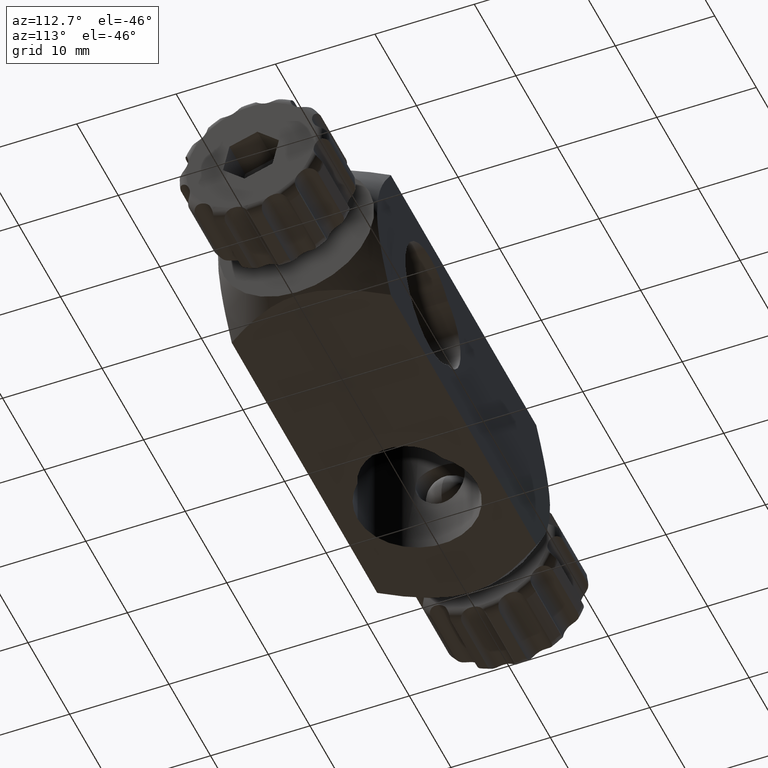
[diagram: clean part render]
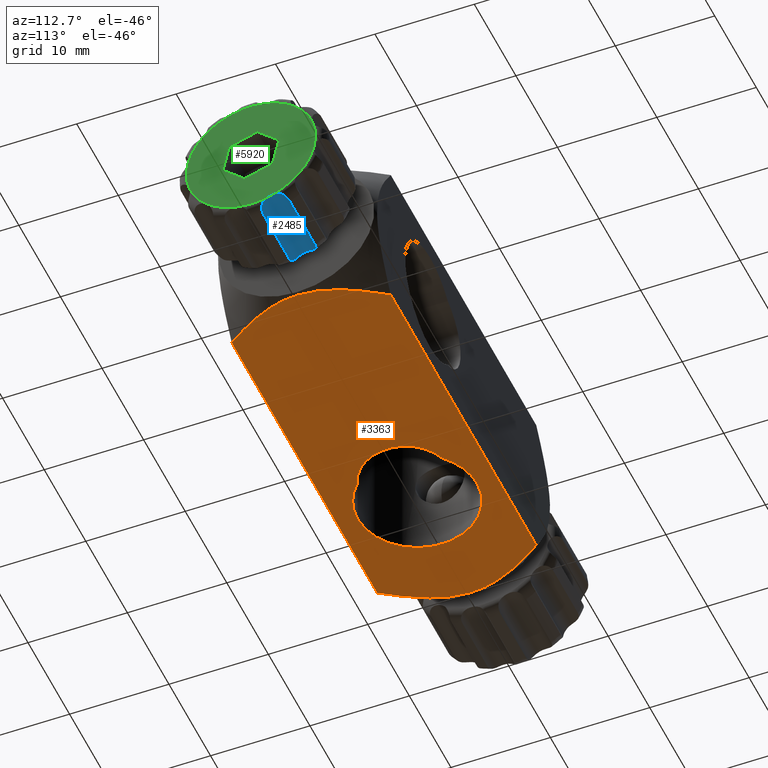
[diagram: same view with three faces highlighted in distinct colors, each labeled with its STEP entity id]
A machine part, auxiliary view with three faces highlighted in distinct colors.
Their STEP definitions:

[orange] entity #3363 — the highlighted planar face has unit normal (0, -0, 1).
#35 = ORIENTED_EDGE ( 'NONE', *, *, #175, .F. ) ;
#98 = B_SPLINE_CURVE_WITH_KNOTS ( 'NONE', 3,
 ( #4686, #1510, #5650, #1932, #1071, #5173, #3351, #3743, #5206, #2898, #2962, #2360, #5680, #5597 ),
 .UNSPECIFIED., .F., .F.,
 ( 4, 2, 2, 2, 2, 2, 4 ),
 ( 0.01783099739890334906, 0.01892789397532827420, 0.02002479055175319933, 0.02112168712817812793, 0.02221858370460305654, 0.02441237685745291028, 0.02660617001030276749 ),
 .UNSPECIFIED. ) ;
#175 = EDGE_CURVE ( 'NONE', #5871, #5452, #5161, .T. ) ;
#188 = EDGE_CURVE ( 'NONE', #5712, #3388, #4150, .T. ) ;
#266 = EDGE_LOOP ( 'NONE', ( #2147, #745, #4295, #35, #2673, #2090 ) ) ;
#320 = CARTESIAN_POINT ( 'NONE',  ( -20.69026019973990316, -1.455835578218859672, -8.000000000000003553 ) ) ;
#388 = CARTESIAN_POINT ( 'NONE',  ( -8.000000000000000000, 1.734723475976807883E-15, -8.000000000000001776 ) ) ;
#458 = DIRECTION ( 'NONE',  ( 0.000000000000000000, 1.000000000000000000, 2.891205793294679312E-16 ) ) ;
#479 = DIRECTION ( 'NONE',  ( 0.000000000000000000, -2.168404344971009115E-16, 1.000000000000000000 ) ) ;
#512 = VERTEX_POINT ( 'NONE', #2187 ) ;
#738 = VECTOR ( 'NONE', #1721, 1000.000000000000000 ) ;
#745 = ORIENTED_EDGE ( 'NONE', *, *, #4983, .T. ) ;
#788 = CARTESIAN_POINT ( 'NONE',  ( -8.000000000000000000, -5.999999999999996447, -8.000000000000003553 ) ) ;
#802 = CARTESIAN_POINT ( 'NONE',  ( -20.05440168618216745, 3.581629824737212697, -8.000000000000001776 ) ) ;
#828 = CARTESIAN_POINT ( 'NONE',  ( -8.000000000000000000, 1.734723475976807883E-15, -8.000000000000001776 ) ) ;
#1071 = CARTESIAN_POINT ( 'NONE',  ( 20.61402319011298445, 1.830865816188184336, -8.000000000000003553 ) ) ;
#1191 = DIRECTION ( 'NONE',  ( 0.000000000000000000, 2.168404344971008868E-16, -1.000000000000000000 ) ) ;
#1266 = CARTESIAN_POINT ( 'NONE',  ( -19.44030328246060435, 4.919881602706470680, -8.000000000000000000 ) ) ;
#1267 = ORIENTED_EDGE ( 'NONE', *, *, #5836, .F. ) ;
#1275 = EDGE_CURVE ( 'NONE', #5182, #5831, #1479, .T. ) ;
#1290 = CARTESIAN_POINT ( 'NONE',  ( -20.78791525579226018, 0.7382374763344536905, -8.000000000000001776 ) ) ;
#1299 = DIRECTION ( 'NONE',  ( 0.000000000000000000, 1.000000000000000000, 2.891205793294679312E-16 ) ) ;
#1300 = CIRCLE ( 'NONE', #1582, 5.999999999999998224 ) ;
#1301 = CARTESIAN_POINT ( 'NONE',  ( -3.787500000000005418, 4.272568753103925587, -8.000000000000000000 ) ) ;
#1408 = CARTESIAN_POINT ( 'NONE',  ( 19.45227572583580411, -4.896825401250167964, -8.000000000000003553 ) ) ;
#1413 = EDGE_LOOP ( 'NONE', ( #4461, #1267, #4034, #3605 ) ) ;
#1439 = CARTESIAN_POINT ( 'NONE',  ( 20.69026019973989250, -1.455835578218861448, -8.000000000000000000 ) ) ;
#1479 = CIRCLE ( 'NONE', #5633, 5.999999999999998224 ) ;
#1484 = CIRCLE ( 'NONE', #4955, 5.999999999999998224 ) ;
#1510 = CARTESIAN_POINT ( 'NONE',  ( 20.81370849898477005, 0.3668345160602040633, -8.000000000000003553 ) ) ;
#1582 = AXIS2_PLACEMENT_3D ( 'NONE', #828, #4954, #458 ) ;
#1614 = CARTESIAN_POINT ( 'NONE',  ( -8.000000000000000000, 1.734723475976807883E-15, -8.000000000000001776 ) ) ;
#1625 = CARTESIAN_POINT ( 'NONE',  ( -20.33557784473262942, -2.890462979313520808, -8.000000000000001776 ) ) ;
#1627 = AXIS2_PLACEMENT_3D ( 'NONE', #5829, #1698, #5387 ) ;
#1642 = EDGE_CURVE ( 'NONE', #2825, #5030, #1484, .T. ) ;
#1681 = CARTESIAN_POINT ( 'NONE',  ( -20.07182435414851440, -3.572536052425639763, -8.000000000000003553 ) ) ;
#1698 = DIRECTION ( 'NONE',  ( 0.000000000000000000, 2.168404344971008868E-16, -1.000000000000000000 ) ) ;
#1711 = CARTESIAN_POINT ( 'NONE',  ( -18.32578179175527922, 6.799884536331319396, -8.000000000000000000 ) ) ;
#1712 = CARTESIAN_POINT ( 'NONE',  ( -20.81370849898476649, -7.838516384728583804E-24, -8.000000000000001776 ) ) ;
#1721 = DIRECTION ( 'NONE',  ( -1.000000000000000000, -0.000000000000000000, -0.000000000000000000 ) ) ;
#1745 = EDGE_CURVE ( 'NONE', #5831, #2825, #1300, .T. ) ;
#1811 = PLANE ( 'NONE',  #5644 ) ;
#1867 = FACE_OUTER_BOUND ( 'NONE', #266, .T. ) ;
#1914 = CARTESIAN_POINT ( 'NONE',  ( 18.32920172496105238, -6.794962145850091062, -8.000000000000003553 ) ) ;
#1932 = CARTESIAN_POINT ( 'NONE',  ( 20.68773215841724422, 1.470757925850914916, -8.000000000000000000 ) ) ;
#1941 = CARTESIAN_POINT ( 'NONE',  ( 17.92199593094689547, -7.403207631188642779, -8.000000000000005329 ) ) ;
#2090 = ORIENTED_EDGE ( 'NONE', *, *, #4846, .F. ) ;
#2147 = ORIENTED_EDGE ( 'NONE', *, *, #188, .F. ) ;
#2187 = CARTESIAN_POINT ( 'NONE',  ( -17.50000000000000000, -8.000000000000001776, -8.000000000000003553 ) ) ;
#2227 = DIRECTION ( 'NONE',  ( 0.000000000000000000, 2.168404344971008868E-16, -1.000000000000000000 ) ) ;
#2344 = CARTESIAN_POINT ( 'NONE',  ( 17.50000000000000355, 8.000000000000000000, -8.000000000000000000 ) ) ;
#2360 = CARTESIAN_POINT ( 'NONE',  ( 18.32578179175528277, 6.799884536331306073, -8.000000000000001776 ) ) ;
#2373 = CARTESIAN_POINT ( 'NONE',  ( 20.81370849898476649, -7.838516384728583804E-24, -8.000000000000001776 ) ) ;
#2374 = VECTOR ( 'NONE', #5884, 1000.000000000000000 ) ;
#2563 = CARTESIAN_POINT ( 'NONE',  ( -17.50000000000000000, -8.000000000000001776, -8.000000000000003553 ) ) ;
#2575 = LINE ( 'NONE', #5856, #738 ) ;
#2617 = CARTESIAN_POINT ( 'NONE',  ( -19.45227572583581122, -4.896825401250164411, -8.000000000000005329 ) ) ;
#2645 = CARTESIAN_POINT ( 'NONE',  ( -20.31356114242296229, 2.890522693891473871, -8.000000000000001776 ) ) ;
#2673 = ORIENTED_EDGE ( 'NONE', *, *, #5060, .F. ) ;
#2734 = CARTESIAN_POINT ( 'NONE',  ( 19.09497030133767836, -5.540803229080685455, -8.000000000000001776 ) ) ;
#2796 = CARTESIAN_POINT ( 'NONE',  ( 20.61701652224494197, -1.817904995483557551, -8.000000000000001776 ) ) ;
#2805 = CARTESIAN_POINT ( 'NONE',  ( 20.81370849898476649, -7.838516384728583804E-24, -8.000000000000001776 ) ) ;
#2825 = VERTEX_POINT ( 'NONE', #5449 ) ;
#2898 = CARTESIAN_POINT ( 'NONE',  ( 19.44030328246060435, 4.919881602706468016, -8.000000000000001776 ) ) ;
#2903 = CARTESIAN_POINT ( 'NONE',  ( 17.50000000000000000, -8.000000000000001776, -8.000000000000003553 ) ) ;
#2962 = CARTESIAN_POINT ( 'NONE',  ( 19.08536439680540298, 5.557202719141017155, -8.000000000000000000 ) ) ;
#3025 = DIRECTION ( 'NONE',  ( 0.000000000000000000, 1.000000000000000000, 2.891205793294679312E-16 ) ) ;
#3351 = CARTESIAN_POINT ( 'NONE',  ( 20.31356114242296229, 2.890522693891475203, -8.000000000000003553 ) ) ;
#3363 = ADVANCED_FACE ( 'NONE', ( #5468, #1867 ), #1811, .F. ) ;
#3388 = VERTEX_POINT ( 'NONE', #2805 ) ;
#3550 = CARTESIAN_POINT ( 'NONE',  ( -20.81370849898476649, -0.3663150559983832100, -8.000000000000001776 ) ) ;
#3579 = CARTESIAN_POINT ( 'NONE',  ( -20.61402319011298445, 1.830865816188185002, -8.000000000000000000 ) ) ;
#3605 = ORIENTED_EDGE ( 'NONE', *, *, #1745, .F. ) ;
#3743 = CARTESIAN_POINT ( 'NONE',  ( 20.05440168618216390, 3.581629824737211809, -8.000000000000003553 ) ) ;
#3778 = CARTESIAN_POINT ( 'NONE',  ( 20.78844343409581796, -0.7307012536122527990, -8.000000000000001776 ) ) ;
#4031 = CARTESIAN_POINT ( 'NONE',  ( -17.50000000000000000, 8.000000000000000000, -8.000000000000005329 ) ) ;
#4034 = ORIENTED_EDGE ( 'NONE', *, *, #1642, .F. ) ;
#4066 = CARTESIAN_POINT ( 'NONE',  ( 21.00000000000000000, 8.000000000000000000, -8.000000000000000000 ) ) ;
#4104 = CARTESIAN_POINT ( 'NONE',  ( 21.00000000000000000, 8.000000000000000000, -8.000000000000000000 ) ) ;
#4150 = B_SPLINE_CURVE_WITH_KNOTS ( 'NONE', 3,
 ( #4154, #1941, #1914, #2734, #1408, #5971, #4574, #2796, #1439, #3778, #5029, #2373 ),
 .UNSPECIFIED., .F., .F.,
 ( 4, 2, 2, 2, 2, 4 ),
 ( 0.009068250967450548414, 0.01125893757531374814, 0.01344962418317694614, 0.01564031079104014760, 0.01673565409497174833, 0.01783099739890334906 ),
 .UNSPECIFIED. ) ;
#4154 = CARTESIAN_POINT ( 'NONE',  ( 17.50000000000000000, -8.000000000000001776, -8.000000000000003553 ) ) ;
#4295 = ORIENTED_EDGE ( 'NONE', *, *, #5116, .F. ) ;
#4365 = CARTESIAN_POINT ( 'NONE',  ( -18.32920172496105593, -6.794962145850087509, -8.000000000000003553 ) ) ;
#4461 = ORIENTED_EDGE ( 'NONE', *, *, #1275, .F. ) ;
#4492 = LINE ( 'NONE', #4066, #2374 ) ;
#4511 = VERTEX_POINT ( 'NONE', #2344 ) ;
#4574 = CARTESIAN_POINT ( 'NONE',  ( 20.33557784473263652, -2.890462979313523029, -8.000000000000005329 ) ) ;
#4603 = CARTESIAN_POINT ( 'NONE',  ( -20.81370849898476649, -7.838516384728583804E-24, -8.000000000000001776 ) ) ;
#4615 = DIRECTION ( 'NONE',  ( 0.000000000000000000, -1.000000000000000000, -2.168404344971009115E-16 ) ) ;
#4686 = CARTESIAN_POINT ( 'NONE',  ( 20.81370849898476649, -7.838516384728583804E-24, -8.000000000000001776 ) ) ;
#4846 = EDGE_CURVE ( 'NONE', #3388, #4511, #98, .T. ) ;
#4932 = CARTESIAN_POINT ( 'NONE',  ( -19.90858681300131394, 3.922667415171030569, -8.000000000000003553 ) ) ;
#4954 = DIRECTION ( 'NONE',  ( 0.000000000000000000, 2.168404344971008868E-16, -1.000000000000000000 ) ) ;
#4955 = AXIS2_PLACEMENT_3D ( 'NONE', #1614, #1191, #3025 ) ;
#4966 = CARTESIAN_POINT ( 'NONE',  ( -19.09497030133769613, -5.540803229080683678, -8.000000000000003553 ) ) ;
#4983 = EDGE_CURVE ( 'NONE', #5712, #512, #2575, .T. ) ;
#5029 = CARTESIAN_POINT ( 'NONE',  ( 20.81370849898477005, -0.3663150559983831545, -8.000000000000001776 ) ) ;
#5030 = VERTEX_POINT ( 'NONE', #1301 ) ;
#5060 = EDGE_CURVE ( 'NONE', #4511, #5871, #4492, .T. ) ;
#5116 = EDGE_CURVE ( 'NONE', #5452, #512, #5857, .T. ) ;
#5161 = B_SPLINE_CURVE_WITH_KNOTS ( 'NONE', 3,
 ( #4031, #5814, #1711, #5399, #1266, #4932, #802, #2645, #5873, #3579, #5424, #1290, #5635, #4603 ),
 .UNSPECIFIED., .F., .F.,
 ( 4, 2, 2, 2, 2, 2, 4 ),
 ( 0.03399603221308254014, 0.03618591376051046721, 0.03837579530793839427, 0.03947073608165235781, 0.04056567685536632134, 0.04166061762908029181, 0.04275555840279425535 ),
 .UNSPECIFIED. ) ;
#5173 = CARTESIAN_POINT ( 'NONE',  ( 20.42692407732145199, 2.540744656161479931, -8.000000000000001776 ) ) ;
#5182 = VERTEX_POINT ( 'NONE', #5342 ) ;
#5206 = CARTESIAN_POINT ( 'NONE',  ( 19.90858681300131749, 3.922667415171029681, -8.000000000000001776 ) ) ;
#5318 = CARTESIAN_POINT ( 'NONE',  ( -20.61701652224494197, -1.817904995483557773, -8.000000000000001776 ) ) ;
#5342 = CARTESIAN_POINT ( 'NONE',  ( -3.787500000000004530, -4.272568753103921146, -8.000000000000003553 ) ) ;
#5387 = DIRECTION ( 'NONE',  ( 0.000000000000000000, 1.000000000000000000, 3.854941057726237111E-16 ) ) ;
#5399 = CARTESIAN_POINT ( 'NONE',  ( -19.08536439680539232, 5.557202719141026925, -8.000000000000001776 ) ) ;
#5400 = CARTESIAN_POINT ( 'NONE',  ( -17.92199593094690258, -7.403207631188638338, -8.000000000000003553 ) ) ;
#5424 = CARTESIAN_POINT ( 'NONE',  ( -20.68773215841725133, 1.470757925850920911, -8.000000000000001776 ) ) ;
#5449 = CARTESIAN_POINT ( 'NONE',  ( -8.000000000000000000, 6.000000000000000000, -8.000000000000000000 ) ) ;
#5452 = VERTEX_POINT ( 'NONE', #5958 ) ;
#5468 = FACE_BOUND ( 'NONE', #1413, .T. ) ;
#5586 = CIRCLE ( 'NONE', #1627, 4.500000000000000888 ) ;
#5597 = CARTESIAN_POINT ( 'NONE',  ( 17.50000000000000355, 8.000000000000000000, -8.000000000000000000 ) ) ;
#5633 = AXIS2_PLACEMENT_3D ( 'NONE', #388, #2227, #1299 ) ;
#5635 = CARTESIAN_POINT ( 'NONE',  ( -20.81370849898476294, 0.3668345160602036747, -8.000000000000000000 ) ) ;
#5644 = AXIS2_PLACEMENT_3D ( 'NONE', #4104, #479, #4615 ) ;
#5650 = CARTESIAN_POINT ( 'NONE',  ( 20.78791525579226729, 0.7382374763344489166, -8.000000000000001776 ) ) ;
#5680 = CARTESIAN_POINT ( 'NONE',  ( 17.92073733177019079, 7.404987559213930481, -7.999999999999998224 ) ) ;
#5712 = VERTEX_POINT ( 'NONE', #2903 ) ;
#5760 = CARTESIAN_POINT ( 'NONE',  ( -20.78844343409582152, -0.7307012536122524660, -8.000000000000000000 ) ) ;
#5814 = CARTESIAN_POINT ( 'NONE',  ( -17.92073733177018724, 7.404987559213939363, -8.000000000000000000 ) ) ;
#5829 = CARTESIAN_POINT ( 'NONE',  ( -5.200000000000000178, 1.734723475976807883E-15, -8.000000000000001776 ) ) ;
#5831 = VERTEX_POINT ( 'NONE', #788 ) ;
#5836 = EDGE_CURVE ( 'NONE', #5030, #5182, #5586, .T. ) ;
#5856 = CARTESIAN_POINT ( 'NONE',  ( 21.00000000000000000, -7.999999999999998224, -8.000000000000003553 ) ) ;
#5857 = B_SPLINE_CURVE_WITH_KNOTS ( 'NONE', 3,
 ( #1712, #3550, #5760, #320, #5318, #1625, #1681, #2617, #4966, #4365, #5400, #2563 ),
 .UNSPECIFIED., .F., .F.,
 ( 4, 2, 2, 2, 2, 4 ),
 ( 0.04275555840279425535, 0.04384894867355088738, 0.04494233894430751941, 0.04712911948582078348, 0.04931590002733404754, 0.05150268056884731160 ),
 .UNSPECIFIED. ) ;
#5871 = VERTEX_POINT ( 'NONE', #5925 ) ;
#5873 = CARTESIAN_POINT ( 'NONE',  ( -20.42692407732145199, 2.540744656161480375, -8.000000000000001776 ) ) ;
#5884 = DIRECTION ( 'NONE',  ( -1.000000000000000000, -0.000000000000000000, -0.000000000000000000 ) ) ;
#5925 = CARTESIAN_POINT ( 'NONE',  ( -17.50000000000000000, 8.000000000000000000, -8.000000000000005329 ) ) ;
#5958 = CARTESIAN_POINT ( 'NONE',  ( -20.81370849898476649, -7.838516384728583804E-24, -8.000000000000001776 ) ) ;
#5971 = CARTESIAN_POINT ( 'NONE',  ( 20.07182435414850730, -3.572536052425642872, -8.000000000000003553 ) ) ;

[blue] entity #2485 — the highlighted cylindrical surface (edge-blend (fillet) strip) has radius 1.5 mm, axis along (-1, 0, -0).
#166 = CARTESIAN_POINT ( 'NONE',  ( 23.99751958455902923, 2.308259842281032537, -6.126509887344766980 ) ) ;
#192 = B_SPLINE_CURVE_WITH_KNOTS ( 'NONE', 3,
 ( #225, #3453, #4469, #2998, #2583, #4810, #1164, #2060, #310, #5274, #1138, #1666, #3895, #5359, #1644, #5748 ),
 .UNSPECIFIED., .F., .F.,
 ( 4, 2, 2, 2, 2, 2, 2, 4 ),
 ( 0.002339469482553254570, 0.002620738270428607519, 0.002902007058303960902, 0.003183275846179314285, 0.003464544634054667234, 0.003745813421930020183, 0.004027082209805374000, 0.004589619785556071224 ),
 .UNSPECIFIED. ) ;
#225 = CARTESIAN_POINT ( 'NONE',  ( 24.00000000000000000, 1.937972247087622168, -6.204374551033994045 ) ) ;
#310 = CARTESIAN_POINT ( 'NONE',  ( 24.08146786490933877, 1.130399114861763588, -6.809699942589079846 ) ) ;
#324 = CARTESIAN_POINT ( 'NONE',  ( 30.99999999999999645, 3.500424969360996563, -6.633025330411022047 ) ) ;
#368 = CARTESIAN_POINT ( 'NONE',  ( 32.00000000000000000, 1.937972247087621946, -6.204374551033994045 ) ) ;
#473 = VERTEX_POINT ( 'NONE', #5869 ) ;
#514 = CARTESIAN_POINT ( 'NONE',  ( 32.00000000000000711, 1.758765637494212886, -6.260350771204127085 ) ) ;
#519 = CARTESIAN_POINT ( 'NONE',  ( 24.15402759177798941, 3.104861993822077171, -6.317177671124177607 ) ) ;
#555 = CARTESIAN_POINT ( 'NONE',  ( 24.81187099171115662, 3.500424969361002780, -6.633025330411004283 ) ) ;
#580 = CARTESIAN_POINT ( 'NONE',  ( 31.37549100700444527, 0.9016239258571655535, -7.390650786856983068 ) ) ;
#614 = CARTESIAN_POINT ( 'NONE',  ( 24.38812726182523249, 3.346728716509064228, -6.483644588841966261 ) ) ;
#652 = CARTESIAN_POINT ( 'NONE',  ( 32.00016914116274336, 2.120939116082320997, -6.156648079884501357 ) ) ;
#709 = CARTESIAN_POINT ( 'NONE',  ( 31.97727455232851668, 2.681303708081810733, -6.162780706387041008 ) ) ;
#789 = ORIENTED_EDGE ( 'NONE', *, *, #2438, .F. ) ;
#807 = LINE ( 'NONE', #4970, #1987 ) ;
#885 = ORIENTED_EDGE ( 'NONE', *, *, #1634, .F. ) ;
#978 = CARTESIAN_POINT ( 'NONE',  ( 31.95464743911768224, 1.173778482601083306, -6.734507984640838885 ) ) ;
#1138 = CARTESIAN_POINT ( 'NONE',  ( 24.20096478923031924, 1.008634325871471171, -7.035741060663617041 ) ) ;
#1164 = CARTESIAN_POINT ( 'NONE',  ( 24.02272735563643380, 1.303109009612055447, -6.593275966250208064 ) ) ;
#1171 = CARTESIAN_POINT ( 'NONE',  ( 31.99876990541140032, 2.306986903674574041, -6.135269906054463540 ) ) ;
#1257 = B_SPLINE_CURVE_WITH_KNOTS ( 'NONE', 3,
 ( #368, #4752, #652, #1171, #3900, #2979, #709, #4816, #3396, #5247, #2556, #5668, #3865, #4841, #1585, #2101 ),
 .UNSPECIFIED., .F., .F.,
 ( 4, 2, 2, 2, 2, 2, 2, 4 ),
 ( 0.002345318102255090562, 0.002626582659963838488, 0.002907847217672585981, 0.003189111775381333475, 0.003470376333090081401, 0.003751640890798829328, 0.004032905448507576388, 0.004595434563925072241 ),
 .UNSPECIFIED. ) ;
#1268 = CARTESIAN_POINT ( 'NONE',  ( 25.00000000000001421, 0.8972812836455283936, -7.446132304627655074 ) ) ;
#1440 = VERTEX_POINT ( 'NONE', #4694 ) ;
#1572 = CARTESIAN_POINT ( 'NONE',  ( 24.00000000000000000, 1.937972247087622168, -6.204374551033994045 ) ) ;
#1585 = CARTESIAN_POINT ( 'NONE',  ( 31.19023267080075712, 3.500424969361004113, -6.633025330411006948 ) ) ;
#1634 = EDGE_CURVE ( 'NONE', #3603, #2359, #192, .T. ) ;
#1644 = CARTESIAN_POINT ( 'NONE',  ( 24.80970709074878044, 0.8972812836455444918, -7.446132304627661291 ) ) ;
#1666 = CARTESIAN_POINT ( 'NONE',  ( 24.31828685240397547, 0.9564609577220056780, -7.173408215548046307 ) ) ;
#1759 = CARTESIAN_POINT ( 'NONE',  ( 28.00000000000000711, 3.500424969360997451, -6.633025330411018494 ) ) ;
#1858 = CARTESIAN_POINT ( 'NONE',  ( 32.00000000000000000, 2.385196611800162625, -7.636153293580284718 ) ) ;
#1892 = EDGE_CURVE ( 'NONE', #1440, #473, #5616, .T. ) ;
#1957 = CARTESIAN_POINT ( 'NONE',  ( 32.00248026754062636, 1.589167718307775035, -6.351131901351920739 ) ) ;
#1987 = VECTOR ( 'NONE', #3641, 1000.000000000000000 ) ;
#1996 = CARTESIAN_POINT ( 'NONE',  ( 24.00000000000001066, 2.117109261410809573, -6.148420069348699890 ) ) ;
#2025 = CARTESIAN_POINT ( 'NONE',  ( 25.00000000000000711, 3.500424969360983685, -6.633025330411014941 ) ) ;
#2060 = CARTESIAN_POINT ( 'NONE',  ( 24.05639239723286593, 1.183494900500337677, -6.733701247359876518 ) ) ;
#2101 = CARTESIAN_POINT ( 'NONE',  ( 30.99999999999999645, 3.500424969360996563, -6.633025330411022047 ) ) ;
#2330 = CARTESIAN_POINT ( 'NONE',  ( 31.18804614191824598, 0.8972812836455457131, -7.446132304627646192 ) ) ;
#2359 = VERTEX_POINT ( 'NONE', #1268 ) ;
#2419 = CARTESIAN_POINT ( 'NONE',  ( 31.80972844213310324, 0.9990401763261096413, -7.036930060320279345 ) ) ;
#2438 = EDGE_CURVE ( 'NONE', #2359, #1440, #807, .T. ) ;
#2452 = CARTESIAN_POINT ( 'NONE',  ( 24.31939133577748535, 3.297512678772928307, -6.443193427419529939 ) ) ;
#2485 = ADVANCED_FACE ( 'NONE', ( #2859 ), #4703, .F. ) ;
#2556 = CARTESIAN_POINT ( 'NONE',  ( 31.79900949073919492, 3.175305950506225994, -6.358992791759682461 ) ) ;
#2583 = CARTESIAN_POINT ( 'NONE',  ( 24.00280470108762287, 1.517289405004783376, -6.409146827607827390 ) ) ;
#2766 = VECTOR ( 'NONE', #4993, 1000.000000000000000 ) ;
#2859 = FACE_OUTER_BOUND ( 'NONE', #5303, .T. ) ;
#2979 = CARTESIAN_POINT ( 'NONE',  ( 31.98652902969436340, 2.587710146350430396, -6.146922376911984287 ) ) ;
#2998 = CARTESIAN_POINT ( 'NONE',  ( 24.00123062124038853, 1.595181819288254310, -6.357618221935366520 ) ) ;
#3276 = DIRECTION ( 'NONE',  ( -1.000000000000000000, 2.081668171172181147E-17, -2.978764910297605146E-31 ) ) ;
#3292 = ORIENTED_EDGE ( 'NONE', *, *, #5729, .F. ) ;
#3320 = CARTESIAN_POINT ( 'NONE',  ( 31.00000000000000000, 0.8972812836455450469, -7.446132304627644416 ) ) ;
#3352 = CARTESIAN_POINT ( 'NONE',  ( 32.00000000000000000, 1.937972247087621946, -6.204374551033994045 ) ) ;
#3396 = CARTESIAN_POINT ( 'NONE',  ( 31.91852380937766753, 2.946522460128031984, -6.242435454414397178 ) ) ;
#3453 = CARTESIAN_POINT ( 'NONE',  ( 24.00000000000001066, 1.848442258598245180, -6.232339760346756741 ) ) ;
#3581 = VERTEX_POINT ( 'NONE', #324 ) ;
#3603 = VERTEX_POINT ( 'NONE', #5763 ) ;
#3641 = DIRECTION ( 'NONE',  ( 1.000000000000000000, -2.081668171172181147E-17, 2.978764910297605146E-31 ) ) ;
#3816 = AXIS2_PLACEMENT_3D ( 'NONE', #1858, #3276, #4248 ) ;
#3865 = CARTESIAN_POINT ( 'NONE',  ( 31.61189655131731158, 3.346644665022306508, -6.483587503793007301 ) ) ;
#3895 = CARTESIAN_POINT ( 'NONE',  ( 24.38806982832167947, 0.9386688704565895325, -7.235714534035927237 ) ) ;
#3900 = CARTESIAN_POINT ( 'NONE',  ( 31.99719847196087841, 2.400370750845048917, -6.133292621281955626 ) ) ;
#4248 = DIRECTION ( 'NONE',  ( 0.000000000000000000, 0.9757126306666046300, -0.2190544734938189297 ) ) ;
#4294 = CARTESIAN_POINT ( 'NONE',  ( 24.04540171856379160, 2.868158732186969040, -6.205346734632690264 ) ) ;
#4469 = CARTESIAN_POINT ( 'NONE',  ( 23.99983055740414883, 1.760391532044969454, -6.269261229763313459 ) ) ;
#4618 = B_SPLINE_CURVE_WITH_KNOTS ( 'NONE', 3,
 ( #5715, #555, #5147, #614, #2452, #4655, #519, #4294, #4775, #166, #1996, #1572 ),
 .UNSPECIFIED., .F., .F.,
 ( 4, 2, 2, 2, 2, 4 ),
 ( 8.835109272916360308E-05, 0.0006511306901851865447, 0.0009325204889131986051, 0.001213910287641210449, 0.001776689885097232401, 0.002339469482553254570 ),
 .UNSPECIFIED. ) ;
#4621 = EDGE_CURVE ( 'NONE', #473, #3581, #1257, .T. ) ;
#4651 = CARTESIAN_POINT ( 'NONE',  ( 31.98116923037343895, 1.298136799415323894, -6.585799571229058458 ) ) ;
#4655 = CARTESIAN_POINT ( 'NONE',  ( 24.20119712419117874, 3.175687806366719101, -6.359204774790399917 ) ) ;
#4694 = CARTESIAN_POINT ( 'NONE',  ( 31.00000000000000000, 0.8972812836455450469, -7.446132304627644416 ) ) ;
#4703 = CYLINDRICAL_SURFACE ( 'NONE', #3816, 1.500000000000001554 ) ;
#4752 = CARTESIAN_POINT ( 'NONE',  ( 32.00000000000000711, 2.027536017286060588, -6.176398789809157464 ) ) ;
#4775 = CARTESIAN_POINT ( 'NONE',  ( 24.01882705403933116, 2.681120640336846606, -6.153799945073582300 ) ) ;
#4810 = CARTESIAN_POINT ( 'NONE',  ( 24.01346524178738662, 1.371117475214700177, -6.526896203502576377 ) ) ;
#4816 = CARTESIAN_POINT ( 'NONE',  ( 31.94361272516191974, 2.859574490352930098, -6.210154758693016142 ) ) ;
#4841 = CARTESIAN_POINT ( 'NONE',  ( 31.37692889517565575, 3.464685099129603874, -6.589317279177127951 ) ) ;
#4970 = CARTESIAN_POINT ( 'NONE',  ( 28.00000000000000711, 0.8972812836455438257, -7.446132304627651521 ) ) ;
#4993 = DIRECTION ( 'NONE',  ( -1.000000000000000000, 2.081668171172181147E-17, -2.978764910297605146E-31 ) ) ;
#5064 = ORIENTED_EDGE ( 'NONE', *, *, #1892, .F. ) ;
#5147 = CARTESIAN_POINT ( 'NONE',  ( 24.62473436945946048, 3.465375709489555422, -6.589972463872041608 ) ) ;
#5207 = CARTESIAN_POINT ( 'NONE',  ( 31.69061737153210956, 0.9509589535330251753, -7.184244303968499779 ) ) ;
#5247 = CARTESIAN_POINT ( 'NONE',  ( 31.84668284873060884, 3.103556066112693301, -6.316495831353800661 ) ) ;
#5265 = EDGE_CURVE ( 'NONE', #3581, #5938, #5965, .T. ) ;
#5274 = CARTESIAN_POINT ( 'NONE',  ( 24.15333974141501372, 1.043405953403458541, -6.960032203296301567 ) ) ;
#5303 = EDGE_LOOP ( 'NONE', ( #789, #885, #3292, #5341, #5899, #5064 ) ) ;
#5341 = ORIENTED_EDGE ( 'NONE', *, *, #5265, .F. ) ;
#5359 = CARTESIAN_POINT ( 'NONE',  ( 24.62319506584616491, 0.9017721129131979207, -7.389928634806133267 ) ) ;
#5616 = B_SPLINE_CURVE_WITH_KNOTS ( 'NONE', 3,
 ( #3320, #2330, #580, #5207, #2419, #978, #4651, #1957, #514, #3352 ),
 .UNSPECIFIED., .F., .F.,
 ( 4, 2, 2, 2, 4 ),
 ( 9.420841028499990673E-05, 0.0006569858332775226246, 0.001219763256270045343, 0.001782540679262568060, 0.002345318102255090562 ),
 .UNSPECIFIED. ) ;
#5668 = CARTESIAN_POINT ( 'NONE',  ( 31.68176762438583438, 3.296485057765928595, -6.442434280256592594 ) ) ;
#5715 = CARTESIAN_POINT ( 'NONE',  ( 25.00000000000000711, 3.500424969360983685, -6.633025330411014941 ) ) ;
#5729 = EDGE_CURVE ( 'NONE', #5938, #3603, #4618, .T. ) ;
#5748 = CARTESIAN_POINT ( 'NONE',  ( 25.00000000000001421, 0.8972812836455283936, -7.446132304627655074 ) ) ;
#5763 = CARTESIAN_POINT ( 'NONE',  ( 24.00000000000000000, 1.937972247087622168, -6.204374551033994045 ) ) ;
#5869 = CARTESIAN_POINT ( 'NONE',  ( 32.00000000000000000, 1.937972247087621946, -6.204374551033994045 ) ) ;
#5899 = ORIENTED_EDGE ( 'NONE', *, *, #4621, .F. ) ;
#5938 = VERTEX_POINT ( 'NONE', #2025 ) ;
#5965 = LINE ( 'NONE', #1759, #2766 ) ;

[green] entity #5920 — the highlighted planar face has unit normal (-1, 0, -0).
#8 = DIRECTION ( 'NONE',  ( 1.000000000000000000, -2.081668171172181147E-17, 2.978764910297605146E-31 ) ) ;
#33 = DIRECTION ( 'NONE',  ( 1.000000000000000000, -2.081668171172181147E-17, 2.978764910297605146E-31 ) ) ;
#51 = CIRCLE ( 'NONE', #2069, 6.499999999999999112 ) ;
#72 = CARTESIAN_POINT ( 'NONE',  ( 32.00000000000000711, 1.944086263274379672E-15, -2.123597736885457156E-29 ) ) ;
#86 = ORIENTED_EDGE ( 'NONE', *, *, #5072, .T. ) ;
#124 = DIRECTION ( 'NONE',  ( 4.559987252249932285E-18, 0.2190544734938190130, 0.9757126306666045190 ) ) ;
#154 = CARTESIAN_POINT ( 'NONE',  ( 32.00000000000000000, -0.6450029121181185543, -2.872972544832126385 ) ) ;
#156 = EDGE_CURVE ( 'NONE', #4479, #3130, #4843, .T. ) ;
#177 = VERTEX_POINT ( 'NONE', #1022 ) ;
#258 = AXIS2_PLACEMENT_3D ( 'NONE', #360, #5526, #2231 ) ;
#280 = VERTEX_POINT ( 'NONE', #1493 ) ;
#298 = DIRECTION ( 'NONE',  ( 1.000000000000000000, -2.081668171172181147E-17, 2.978764910297605146E-31 ) ) ;
#328 = AXIS2_PLACEMENT_3D ( 'NONE', #72, #3744, #1539 ) ;
#359 = CARTESIAN_POINT ( 'NONE',  ( 32.00000000000000711, 1.944086263274379672E-15, -2.123597736885457156E-29 ) ) ;
#360 = CARTESIAN_POINT ( 'NONE',  ( 32.00000000000000711, 1.944086263274379672E-15, -2.123597736885457156E-29 ) ) ;
#371 = CIRCLE ( 'NONE', #562, 6.499999999999999112 ) ;
#403 = CARTESIAN_POINT ( 'NONE',  ( 32.00000000000000711, 6.342132099332928874, -1.423854077709894250 ) ) ;
#439 = AXIS2_PLACEMENT_3D ( 'NONE', #1052, #1019, #1940 ) ;
#466 = VERTEX_POINT ( 'NONE', #1758 ) ;
#473 = VERTEX_POINT ( 'NONE', #5869 ) ;
#562 = AXIS2_PLACEMENT_3D ( 'NONE', #856, #3677, #3168 ) ;
#596 = ORIENTED_EDGE ( 'NONE', *, *, #968, .T. ) ;
#638 = CIRCLE ( 'NONE', #4012, 6.499999999999999112 ) ;
#657 = ORIENTED_EDGE ( 'NONE', *, *, #1837, .T. ) ;
#712 = DIRECTION ( 'NONE',  ( 1.000000000000000000, -2.081668171172181147E-17, 2.978764910297605146E-31 ) ) ;
#727 = CARTESIAN_POINT ( 'NONE',  ( 32.00000000000000711, 1.423854077709881372, 6.342132099332923545 ) ) ;
#760 = ORIENTED_EDGE ( 'NONE', *, *, #2268, .F. ) ;
#809 = AXIS2_PLACEMENT_3D ( 'NONE', #359, #298, #1688 ) ;
#845 = CIRCLE ( 'NONE', #2382, 6.499999999999999112 ) ;
#850 = CARTESIAN_POINT ( 'NONE',  ( 32.00000000000000711, 1.944086263274379672E-15, -2.123597736885457156E-29 ) ) ;
#856 = CARTESIAN_POINT ( 'NONE',  ( 32.00000000000000711, 1.944086263274379672E-15, -2.123597736885457156E-29 ) ) ;
#875 = ORIENTED_EDGE ( 'NONE', *, *, #3364, .T. ) ;
#968 = EDGE_CURVE ( 'NONE', #466, #3275, #3016, .T. ) ;
#1011 = EDGE_CURVE ( 'NONE', #5937, #177, #2415, .T. ) ;
#1019 = DIRECTION ( 'NONE',  ( 1.000000000000000000, -2.081668171172181147E-17, 2.978764910297605146E-31 ) ) ;
#1022 = CARTESIAN_POINT ( 'NONE',  ( 32.00000000000000000, 2.165565752140784284, -1.995075179825300360 ) ) ;
#1051 = EDGE_CURVE ( 'NONE', #177, #3935, #1563, .T. ) ;
#1052 = CARTESIAN_POINT ( 'NONE',  ( 32.00000000000000711, 1.944086263274379672E-15, -2.123597736885457156E-29 ) ) ;
#1080 = ORIENTED_EDGE ( 'NONE', *, *, #4174, .T. ) ;
#1103 = VERTEX_POINT ( 'NONE', #5795 ) ;
#1117 = EDGE_CURVE ( 'NONE', #3130, #1159, #2735, .T. ) ;
#1136 = VECTOR ( 'NONE', #5732, 1000.000000000000114 ) ;
#1144 = ORIENTED_EDGE ( 'NONE', *, *, #1861, .F. ) ;
#1159 = VERTEX_POINT ( 'NONE', #727 ) ;
#1170 = ORIENTED_EDGE ( 'NONE', *, *, #2659, .T. ) ;
#1208 = CARTESIAN_POINT ( 'NONE',  ( 32.00000000000000000, 2.810568664258923377, 0.8778973650068150336 ) ) ;
#1221 = ORIENTED_EDGE ( 'NONE', *, *, #2186, .F. ) ;
#1346 = ORIENTED_EDGE ( 'NONE', *, *, #4953, .T. ) ;
#1351 = DIRECTION ( 'NONE',  ( 1.000000000000000000, -2.081668171172181147E-17, 2.978764910297605146E-31 ) ) ;
#1489 = ORIENTED_EDGE ( 'NONE', *, *, #1051, .F. ) ;
#1493 = CARTESIAN_POINT ( 'NONE',  ( 32.00000000000000711, 4.780520473324103570, -4.404159852245297380 ) ) ;
#1528 = ORIENTED_EDGE ( 'NONE', *, *, #1011, .F. ) ;
#1539 = DIRECTION ( 'NONE',  ( 0.000000000000000000, -0.9757126306666044080, 0.2190544734938189853 ) ) ;
#1563 = LINE ( 'NONE', #2509, #4851 ) ;
#1688 = DIRECTION ( 'NONE',  ( 0.000000000000000000, -0.9757126306666044080, 0.2190544734938189853 ) ) ;
#1758 = CARTESIAN_POINT ( 'NONE',  ( 32.00000000000000711, -4.780511988309349647, 4.404169062430163706 ) ) ;
#1820 = AXIS2_PLACEMENT_3D ( 'NONE', #3421, #5658, #5717 ) ;
#1837 = EDGE_CURVE ( 'NONE', #3275, #2409, #2932, .T. ) ;
#1861 = EDGE_CURVE ( 'NONE', #1103, #5602, #4687, .T. ) ;
#1876 = VECTOR ( 'NONE', #2284, 999.9999999999998863 ) ;
#1940 = DIRECTION ( 'NONE',  ( 0.000000000000000000, -0.9757126306666044080, 0.2190544734938189853 ) ) ;
#1954 = DIRECTION ( 'NONE',  ( 1.986992157679708246E-17, 0.9545191616975325921, 0.2981495764750299315 ) ) ;
#2069 = AXIS2_PLACEMENT_3D ( 'NONE', #5529, #8, #5955 ) ;
#2138 = CARTESIAN_POINT ( 'NONE',  ( 32.00000000000000711, 6.204374551033999374, 1.937972247087633493 ) ) ;
#2139 = DIRECTION ( 'NONE',  ( 0.000000000000000000, -0.9757126306666044080, 0.2190544734938189853 ) ) ;
#2186 = EDGE_CURVE ( 'NONE', #4189, #5937, #4226, .T. ) ;
#2231 = DIRECTION ( 'NONE',  ( 0.000000000000000000, -0.9757126306666044080, 0.2190544734938189853 ) ) ;
#2234 = EDGE_LOOP ( 'NONE', ( #1528, #1221, #2782, #1144, #760, #1489 ) ) ;
#2268 = EDGE_CURVE ( 'NONE', #3935, #1103, #4252, .T. ) ;
#2284 = DIRECTION ( 'NONE',  ( -4.559987252249932285E-18, -0.2190544734938190130, -0.9757126306666045190 ) ) ;
#2382 = AXIS2_PLACEMENT_3D ( 'NONE', #5754, #712, #2560 ) ;
#2409 = VERTEX_POINT ( 'NONE', #4548 ) ;
#2415 = LINE ( 'NONE', #154, #2927 ) ;
#2426 = CARTESIAN_POINT ( 'NONE',  ( 32.00000000000000000, -1.423854077709808763, -6.342132099332935091 ) ) ;
#2454 = VERTEX_POINT ( 'NONE', #5493 ) ;
#2488 = FACE_OUTER_BOUND ( 'NONE', #3839, .T. ) ;
#2509 = CARTESIAN_POINT ( 'NONE',  ( 32.00000000000000000, 2.165565752140784284, -1.995075179825300360 ) ) ;
#2531 = EDGE_CURVE ( 'NONE', #2409, #2454, #845, .T. ) ;
#2560 = DIRECTION ( 'NONE',  ( 0.000000000000000000, -0.9757126306666044080, 0.2190544734938189853 ) ) ;
#2591 = DIRECTION ( 'NONE',  ( 0.000000000000000000, -0.9757126306666044080, 0.2190544734938189853 ) ) ;
#2599 = CARTESIAN_POINT ( 'NONE',  ( 32.00000000000000711, 1.944086263274379672E-15, -2.123597736885457156E-29 ) ) ;
#2659 = EDGE_CURVE ( 'NONE', #5492, #466, #5187, .T. ) ;
#2735 = CIRCLE ( 'NONE', #809, 6.499999999999999112 ) ;
#2754 = CARTESIAN_POINT ( 'NONE',  ( 32.00000000000000711, -1.937962665109264959, 6.204377544055490468 ) ) ;
#2782 = ORIENTED_EDGE ( 'NONE', *, *, #3979, .F. ) ;
#2804 = CARTESIAN_POINT ( 'NONE',  ( 32.00000000000000000, -2.810568664258899396, -0.8778973650068230272 ) ) ;
#2927 = VECTOR ( 'NONE', #1954, 999.9999999999998863 ) ;
#2932 = CIRCLE ( 'NONE', #328, 6.499999999999999112 ) ;
#3016 = CIRCLE ( 'NONE', #5155, 6.499999999999999112 ) ;
#3018 = ORIENTED_EDGE ( 'NONE', *, *, #5033, .T. ) ;
#3039 = CIRCLE ( 'NONE', #439, 6.499999999999999112 ) ;
#3047 = CIRCLE ( 'NONE', #258, 6.499999999999999112 ) ;
#3130 = VERTEX_POINT ( 'NONE', #5009 ) ;
#3168 = DIRECTION ( 'NONE',  ( 0.000000000000000000, -0.9757126306666044080, 0.2190544734938189853 ) ) ;
#3200 = CARTESIAN_POINT ( 'NONE',  ( 32.00000000000000711, 1.944086263274379672E-15, -2.123597736885457156E-29 ) ) ;
#3275 = VERTEX_POINT ( 'NONE', #5163 ) ;
#3364 = EDGE_CURVE ( 'NONE', #5290, #4479, #51, .T. ) ;
#3389 = FACE_BOUND ( 'NONE', #2234, .T. ) ;
#3415 = VECTOR ( 'NONE', #5622, 999.9999999999998863 ) ;
#3421 = CARTESIAN_POINT ( 'NONE',  ( 32.00000000000000000, 1.944086263274380066E-15, -2.123597736885457156E-29 ) ) ;
#3481 = CARTESIAN_POINT ( 'NONE',  ( 32.00000000000000000, -0.6450029121181185543, -2.872972544832126385 ) ) ;
#3616 = DIRECTION ( 'NONE',  ( 1.000000000000000000, -2.081668171172181147E-17, 2.978764910297605146E-31 ) ) ;
#3623 = DIRECTION ( 'NONE',  ( 0.000000000000000000, -0.9757126306666044080, 0.2190544734938189853 ) ) ;
#3677 = DIRECTION ( 'NONE',  ( 1.000000000000000000, -2.081668171172181147E-17, 2.978764910297605146E-31 ) ) ;
#3744 = DIRECTION ( 'NONE',  ( 1.000000000000000000, -2.081668171172181147E-17, 2.978764910297605146E-31 ) ) ;
#3760 = DIRECTION ( 'NONE',  ( 1.530993432454719794E-17, 0.7354646882037134681, -0.6775630541915744764 ) ) ;
#3839 = EDGE_LOOP ( 'NONE', ( #3018, #1346, #4747, #875, #4673, #5426, #1080, #1170, #596, #657, #4413, #86 ) ) ;
#3869 = CARTESIAN_POINT ( 'NONE',  ( 32.00000000000000000, -2.165565752140759859, 1.995075179825295919 ) ) ;
#3907 = CIRCLE ( 'NONE', #4488, 6.499999999999999112 ) ;
#3935 = VERTEX_POINT ( 'NONE', #4876 ) ;
#3979 = EDGE_CURVE ( 'NONE', #5602, #4189, #4931, .T. ) ;
#4012 = AXIS2_PLACEMENT_3D ( 'NONE', #850, #3616, #5466 ) ;
#4070 = CARTESIAN_POINT ( 'NONE',  ( 32.00000000000000711, 1.944086263274379672E-15, -2.123597736885457156E-29 ) ) ;
#4174 = EDGE_CURVE ( 'NONE', #1159, #5492, #3039, .T. ) ;
#4189 = VERTEX_POINT ( 'NONE', #5123 ) ;
#4226 = LINE ( 'NONE', #2804, #4692 ) ;
#4233 = VERTEX_POINT ( 'NONE', #2426 ) ;
#4235 = CARTESIAN_POINT ( 'NONE',  ( 32.00000000000000000, 0.6450029121181409808, 2.872972544832115283 ) ) ;
#4252 = LINE ( 'NONE', #1208, #1136 ) ;
#4413 = ORIENTED_EDGE ( 'NONE', *, *, #2531, .T. ) ;
#4458 = DIRECTION ( 'NONE',  ( 1.000000000000000000, -2.081668171172181147E-17, 2.978764910297605146E-31 ) ) ;
#4479 = VERTEX_POINT ( 'NONE', #2138 ) ;
#4488 = AXIS2_PLACEMENT_3D ( 'NONE', #2599, #4458, #2139 ) ;
#4548 = CARTESIAN_POINT ( 'NONE',  ( 32.00000000000000000, -6.204374551033957630, -1.937972247087684785 ) ) ;
#4673 = ORIENTED_EDGE ( 'NONE', *, *, #156, .T. ) ;
#4687 = LINE ( 'NONE', #4235, #3415 ) ;
#4692 = VECTOR ( 'NONE', #3760, 1000.000000000000114 ) ;
#4747 = ORIENTED_EDGE ( 'NONE', *, *, #5472, .T. ) ;
#4777 = PLANE ( 'NONE',  #1820 ) ;
#4843 = CIRCLE ( 'NONE', #5621, 6.499999999999999112 ) ;
#4851 = VECTOR ( 'NONE', #124, 999.9999999999998863 ) ;
#4876 = CARTESIAN_POINT ( 'NONE',  ( 32.00000000000000000, 2.810568664258923377, 0.8778973650068150336 ) ) ;
#4931 = LINE ( 'NONE', #3869, #1876 ) ;
#4953 = EDGE_CURVE ( 'NONE', #473, #280, #3907, .T. ) ;
#5001 = CARTESIAN_POINT ( 'NONE',  ( 32.00000000000000711, 1.944086263274379672E-15, -2.123597736885457156E-29 ) ) ;
#5009 = CARTESIAN_POINT ( 'NONE',  ( 32.00000000000000711, 4.404159852245294715, 4.780520473324099129 ) ) ;
#5019 = DIRECTION ( 'NONE',  ( 1.000000000000000000, -2.081668171172181147E-17, 2.978764910297605146E-31 ) ) ;
#5033 = EDGE_CURVE ( 'NONE', #4233, #473, #3047, .T. ) ;
#5072 = EDGE_CURVE ( 'NONE', #2454, #4233, #638, .T. ) ;
#5123 = CARTESIAN_POINT ( 'NONE',  ( 32.00000000000000000, -2.810568664258899396, -0.8778973650068230272 ) ) ;
#5155 = AXIS2_PLACEMENT_3D ( 'NONE', #4070, #33, #3623 ) ;
#5163 = CARTESIAN_POINT ( 'NONE',  ( 32.00000000000000000, -6.342132099332907558, 1.423854077709847621 ) ) ;
#5187 = CIRCLE ( 'NONE', #5757, 6.499999999999999112 ) ;
#5290 = VERTEX_POINT ( 'NONE', #403 ) ;
#5426 = ORIENTED_EDGE ( 'NONE', *, *, #1117, .T. ) ;
#5466 = DIRECTION ( 'NONE',  ( 0.000000000000000000, -0.9757126306666044080, 0.2190544734938189853 ) ) ;
#5472 = EDGE_CURVE ( 'NONE', #280, #5290, #371, .T. ) ;
#5492 = VERTEX_POINT ( 'NONE', #2754 ) ;
#5493 = CARTESIAN_POINT ( 'NONE',  ( 32.00000000000000711, -4.404159852245222773, -4.780520473324143538 ) ) ;
#5526 = DIRECTION ( 'NONE',  ( 1.000000000000000000, -2.081668171172181147E-17, 2.978764910297605146E-31 ) ) ;
#5529 = CARTESIAN_POINT ( 'NONE',  ( 32.00000000000000711, 1.944086263274379672E-15, -2.123597736885457156E-29 ) ) ;
#5602 = VERTEX_POINT ( 'NONE', #5808 ) ;
#5621 = AXIS2_PLACEMENT_3D ( 'NONE', #5001, #1351, #2591 ) ;
#5622 = DIRECTION ( 'NONE',  ( -1.986992157679708246E-17, -0.9545191616975325921, -0.2981495764750299315 ) ) ;
#5658 = DIRECTION ( 'NONE',  ( -1.000000000000000000, 2.081668171172156804E-17, -2.426671729927917175E-31 ) ) ;
#5717 = DIRECTION ( 'NONE',  ( 2.031109927469329739E-17, 0.9757126306666045190, -0.2190544734938190130 ) ) ;
#5732 = DIRECTION ( 'NONE',  ( -1.530993432454719794E-17, -0.7354646882037134681, 0.6775630541915744764 ) ) ;
#5754 = CARTESIAN_POINT ( 'NONE',  ( 32.00000000000000711, 1.944086263274379672E-15, -2.123597736885457156E-29 ) ) ;
#5757 = AXIS2_PLACEMENT_3D ( 'NONE', #3200, #5019, #5963 ) ;
#5795 = CARTESIAN_POINT ( 'NONE',  ( 32.00000000000000000, 0.6450029121181409808, 2.872972544832115283 ) ) ;
#5808 = CARTESIAN_POINT ( 'NONE',  ( 32.00000000000000000, -2.165565752140759859, 1.995075179825295919 ) ) ;
#5869 = CARTESIAN_POINT ( 'NONE',  ( 32.00000000000000000, 1.937972247087621946, -6.204374551033994045 ) ) ;
#5920 = ADVANCED_FACE ( 'NONE', ( #3389, #2488 ), #4777, .F. ) ;
#5937 = VERTEX_POINT ( 'NONE', #3481 ) ;
#5955 = DIRECTION ( 'NONE',  ( 0.000000000000000000, -0.9757126306666044080, 0.2190544734938189853 ) ) ;
#5963 = DIRECTION ( 'NONE',  ( 0.000000000000000000, -0.9757126306666044080, 0.2190544734938189853 ) ) ;